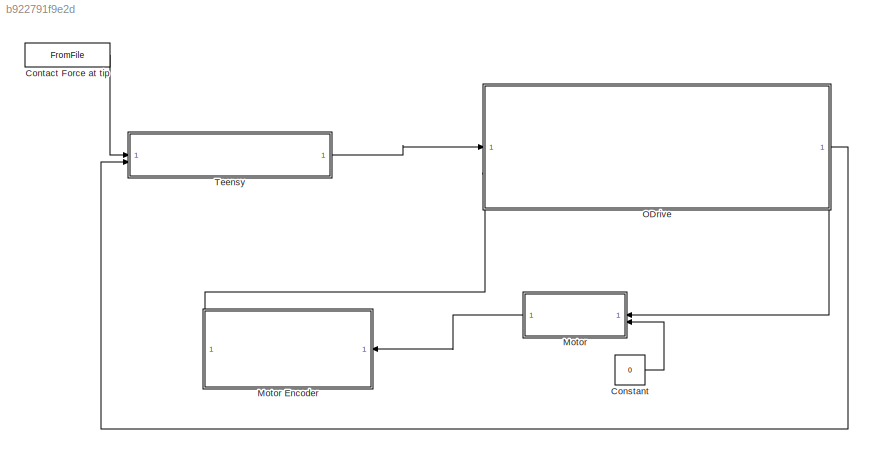
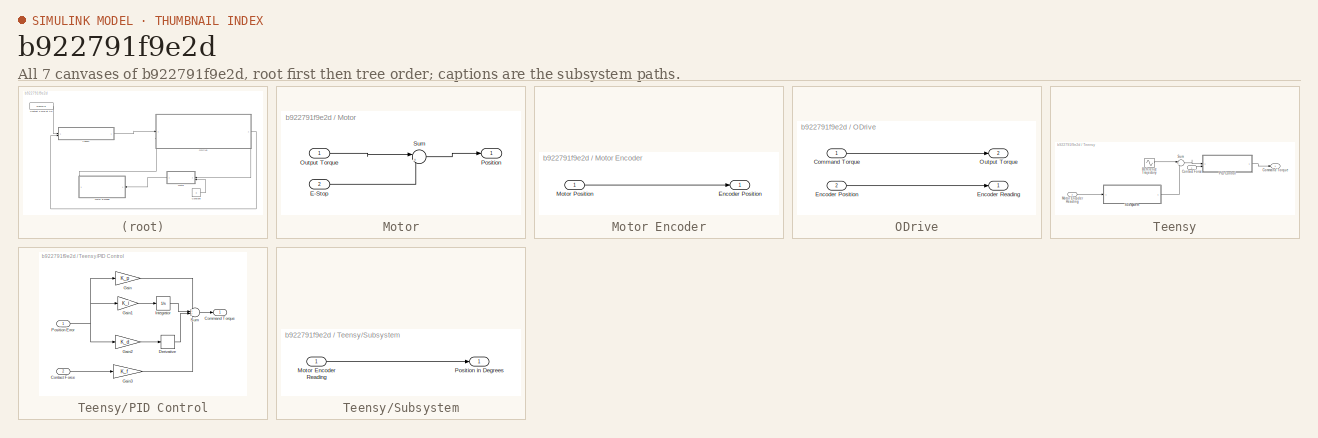
[diagram: thumbnail index - all 7 canvases of the model, root first then tree order]
MODEL slx_b922791f9e2d
KIND model
CONFIG AbsTol = auto
CONFIG EnableMultiTasking = off
CONFIG FixedStep = auto
CONFIG InitFcn = control_diagram_vars_and_functions
CONFIG MaxStep = auto
CONFIG MinStep = auto
CONFIG RelTol = 1e-3
CONFIG SampleTimeConstraint = Unconstrained
CONFIG SolverName = VariableStepAuto
CONFIG StartTime = 0.0
CONFIG StopTime = 10.0
BLOCK [Constant] Constant
  Value = 0
BLOCK [FromFile] Contact Force at tip
  FileName = contact_force.mat
  SampleTime = 0
BLOCK [SubSystem] Motor
BLOCK [SubSystem] Motor Encoder
  PortSchema = {"entries":[{"content":{"sides":[{"content":{"connectorIds":["In1"]},"type":"ConnectorPlacement.EquallySpacedRectSide","uuid":"88afd67f-3209-48d2-80be-27a9c6027e98"},{"content":{"side":"RIGHT"},"type":"ConnectorPlacement.EquallySpacedRectSide","uuid":"6bd83a64-80e2-4e6b-a2e1-60e2a1b1e7d1"},{"content":{"connectorIds":["Out1"],"side":"TOP"},"type":"ConnectorPlacement.EquallySpacedRectSide","uuid":"c...<+222ch>
BLOCK [Outport] Motor Encoder/Encoder Position
BLOCK [Inport] Motor Encoder/Motor Position
BLOCK [Inport] Motor/E-Stop
  Port = 2
BLOCK [Inport] Motor/Output Torque 
BLOCK [Outport] Motor/Position 
BLOCK [Sum] Motor/Sum
  Inputs = |++
BLOCK [SubSystem] ODrive
  PortSchema = {"entries":[{"content":{"sides":[{"content":{"connectorIds":["In1"]},"type":"ConnectorPlacement.EquallySpacedRectSide","uuid":"c97f3b25-cb08-4b77-804d-5691f1a52caa"},{"content":{"connectorIds":["Out1"],"side":"RIGHT"},"type":"ConnectorPlacement.EquallySpacedRectSide","uuid":"fc8ddf87-a458-4f73-a642-c7dd3d8cebff"},{"content":{"side":"TOP"},"type":"ConnectorPlacement.EquallySpacedRectSide","uuid":"b...<+378ch>
BLOCK [Inport] ODrive/Command Torque
BLOCK [Inport] ODrive/Encoder Position
  Port = 2
BLOCK [Outport] ODrive/Encoder Reading
BLOCK [Outport] ODrive/Output Torque 
  Port = 2
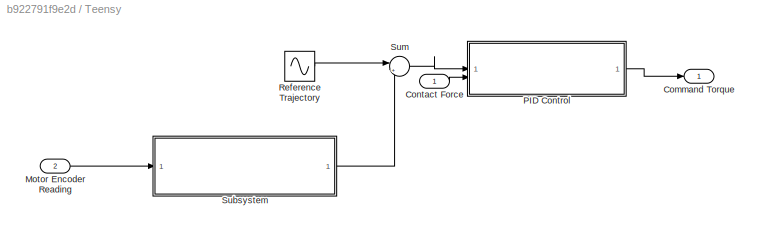
BLOCK [SubSystem] Teensy
BLOCK [Outport] Teensy/Command Torque
BLOCK [Inport] Teensy/Contact Force
BLOCK [Inport] Teensy/Motor Encoder Reading
  Port = 2
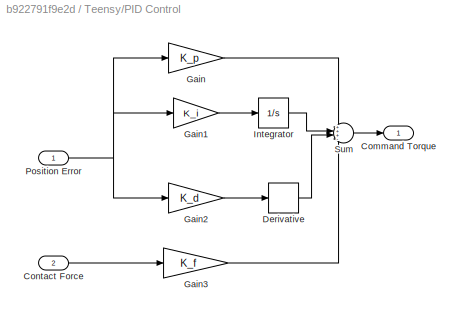
BLOCK [SubSystem] Teensy/PID Control
BLOCK [Outport] Teensy/PID Control/Command Torque
BLOCK [Inport] Teensy/PID Control/Contact Force
  Port = 2
BLOCK [Derivative] Teensy/PID Control/Derivative
BLOCK [Gain] Teensy/PID Control/Gain
  Gain = K_p
BLOCK [Gain] Teensy/PID Control/Gain1
  Gain = K_i
BLOCK [Gain] Teensy/PID Control/Gain2
  Gain = K_d
BLOCK [Gain] Teensy/PID Control/Gain3
  Gain = K_f
BLOCK [Integrator] Teensy/PID Control/Integrator
BLOCK [Inport] Teensy/PID Control/Position Error
BLOCK [Sum] Teensy/PID Control/Sum
  Inputs = +++-
BLOCK [Sin] Teensy/Reference Trajectory
  Amplitude = 0.75*full_ROM
  Frequency = sine_freq_rad_s
  SampleTime = 0
BLOCK [SubSystem] Teensy/Subsystem
BLOCK [Inport] Teensy/Subsystem/Motor Encoder Reading
BLOCK [Outport] Teensy/Subsystem/Position in Degrees
BLOCK [Sum] Teensy/Sum
  Inputs = |+-
LINE Constant:1 -> Motor:2
LINE Contact Force at tip:1 -> Teensy:1
LINE Motor Encoder/Motor Position:1 -> Motor Encoder/Encoder Position:1
LINE Motor Encoder:1 -> ODrive:2
LINE Motor/E-Stop:1 -> Motor/Sum:2
LINE Motor/Output Torque :1 -> Motor/Sum:1
LINE Motor/Sum:1 -> Motor/Position :1
LINE Motor:1 -> Motor Encoder:1
LINE ODrive/Command Torque:1 -> ODrive/Output Torque :1
LINE ODrive/Encoder Position:1 -> ODrive/Encoder Reading:1
LINE ODrive:1 -> Teensy:2
LINE ODrive:2 -> Motor:1
LINE Teensy/Contact Force:1 -> Teensy/PID Control:2
LINE Teensy/Motor Encoder Reading:1 -> Teensy/Subsystem:1
LINE Teensy/PID Control/Contact Force:1 -> Teensy/PID Control/Gain3:1
LINE Teensy/PID Control/Derivative:1 -> Teensy/PID Control/Sum:3
LINE Teensy/PID Control/Gain1:1 -> Teensy/PID Control/Integrator:1
LINE Teensy/PID Control/Gain2:1 -> Teensy/PID Control/Derivative:1
LINE Teensy/PID Control/Gain3:1 -> Teensy/PID Control/Sum:4
LINE Teensy/PID Control/Gain:1 -> Teensy/PID Control/Sum:1
LINE Teensy/PID Control/Integrator:1 -> Teensy/PID Control/Sum:2
NET Teensy/PID Control/Position Error:1 -> Teensy/PID Control/Gain1:1, Teensy/PID Control/Gain2:1, Teensy/PID Control/Gain:1
LINE Teensy/PID Control/Sum:1 -> Teensy/PID Control/Command Torque:1
LINE Teensy/PID Control:1 -> Teensy/Command Torque:1
LINE Teensy/Reference Trajectory:1 -> Teensy/Sum:1
LINE Teensy/Subsystem/Motor Encoder Reading:1 -> Teensy/Subsystem/Position in Degrees:1
LINE Teensy/Subsystem:1 -> Teensy/Sum:2
LINE Teensy/Sum:1 -> Teensy/PID Control:1
LINE Teensy:1 -> ODrive:1
note: NET lines group one-source signal fan-out (src -> all destinations, sorted); 1:1 wires keep LINE
